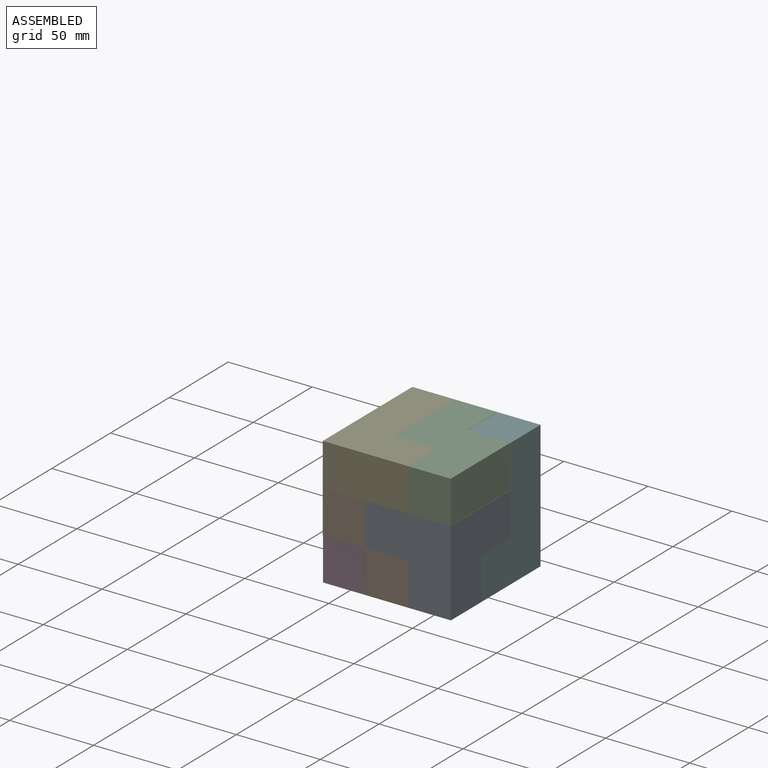
[diagram: assembled view]
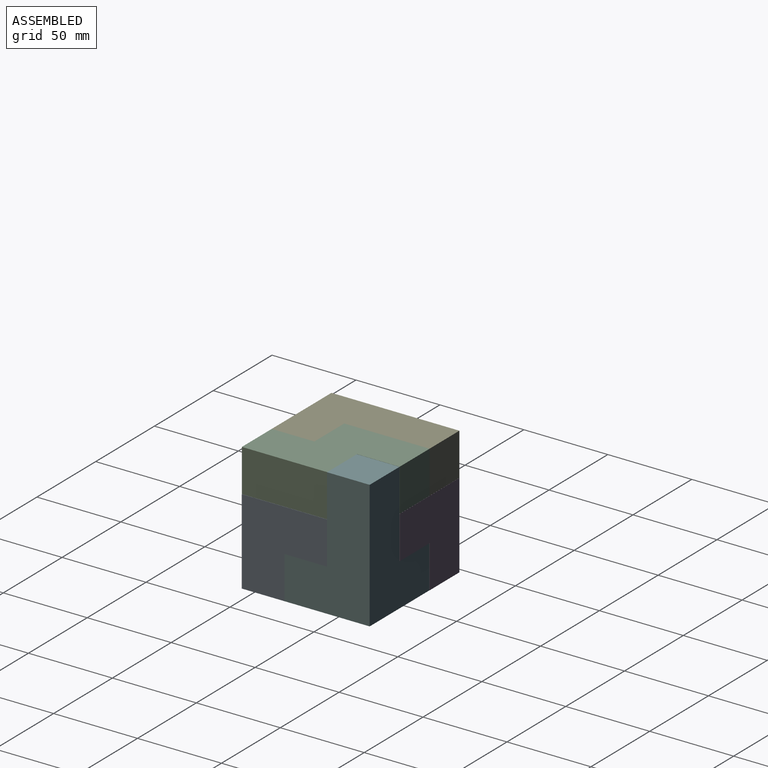
[diagram: assembled view, second angle]
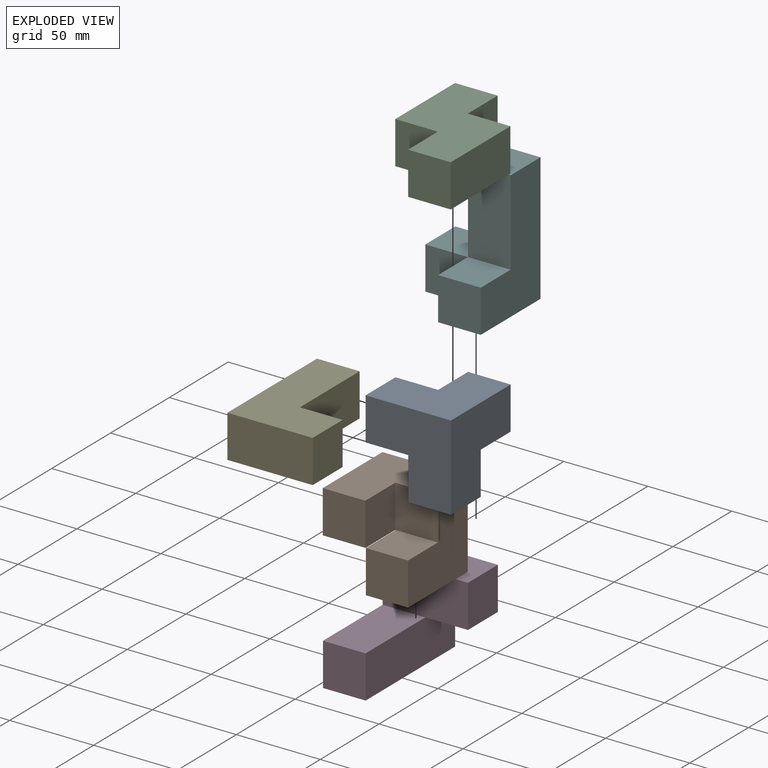
[diagram: exploded view]
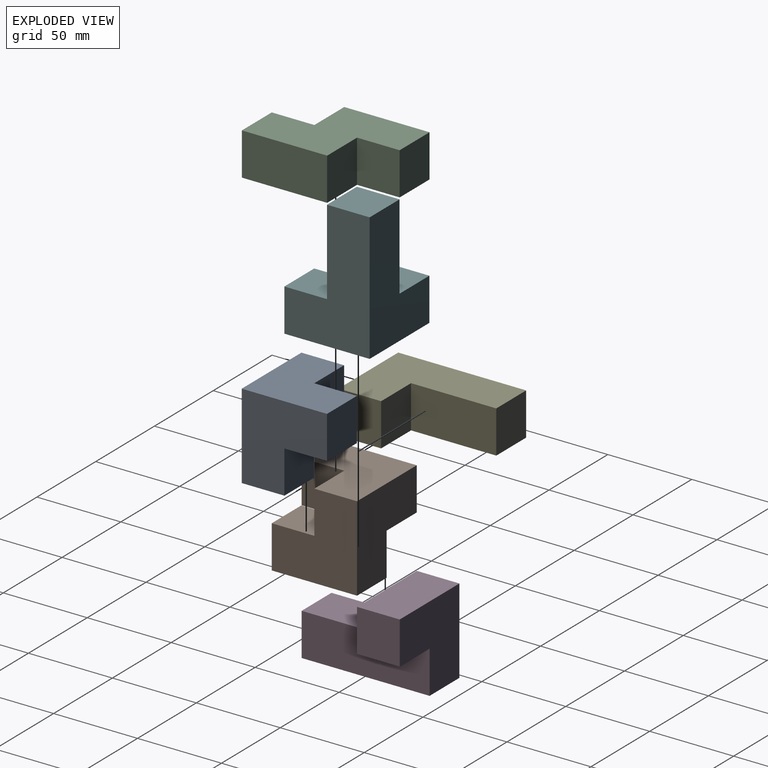
[diagram: exploded view, second angle]
ASSEMBLY  parts=6 mates=5
PART A: 12 faces, bbox 50.8x50.8x50.8 mm
  f0: plane 25.4x25.4mm, normal (-1,0,0), area 645.2mm2, adj f3,f4,f7,f9
  f1: plane 25.4x25.4mm, normal (-1,0,0), area 645.2mm2, adj f2,f6,f8,f10
  f2: plane 25.4x25.4mm, normal (0,1,0), area 645.2mm2, adj f1,f3,f5,f6
  f3: plane 25.4x25.4mm, normal (0,0,-1), area 645.2mm2, adj f0,f2,f4,f5
  f4: plane 25.4x25.4mm, normal (0,1,0), area 645.2mm2, adj f0,f3,f5,f7
  f5: plane 50.8x50.8mm, normal (1,0,0), area 1935.5mm2, adj f2,f3,f4,f6,f7,f8
  f6: plane 25.4x25.4mm, normal (0,0,-1), area 645.2mm2, adj f1,f2,f5,f8
  f7: plane 50.8x50.8mm, normal (0,0,1), area 1935.5mm2, adj f0,f4,f5,f8,f9,f11
  f8: plane 50.8x50.8mm, normal (0,-1,0), area 1935.5mm2, adj f1,f5,f6,f7,f10,f11
  f9: plane 25.4x25.4mm, normal (0,1,0), area 645.2mm2, adj f0,f7,f10,f11
  f10: plane 25.4x25.4mm, normal (0,0,-1), area 645.2mm2, adj f1,f8,f9,f11
  f11: plane 25.4x25.4mm, normal (-1,0,0), area 645.2mm2, adj f7,f8,f9,f10
PART B: 12 faces, bbox 50.8x50.8x50.8 mm
  f0: plane 25.4x25.4mm, normal (0,-1,0), area 645.2mm2, adj f3,f4,f9,f10
  f1: plane 50.8x50.8mm, normal (0,1,0), area 1929mm2, adj f3,f4,f5,f6,f10,f11
  f2: plane 25.4x25.15mm, normal (0,-1,0), area 638.7mm2, adj f5,f6,f8,f11
  f3: plane 50.8x25.4mm, normal (-1,0,0), area 1290.3mm2, adj f0,f1,f4,f10
  f4: plane 50.8x50.8mm, normal (0,0,1), area 1935.5mm2, adj f0,f1,f3,f5,f7,f9
  f5: plane 50.8x50.8mm, normal (1,0,0), area 1935.5mm2, adj f1,f2,f4,f6,f7,f8
  f6: plane 50.8x25.15mm, normal (0,0,-1), area 1277.4mm2, adj f1,f2,f5,f11
  f7: plane 25.4x25.4mm, normal (0,-1,0), area 645.2mm2, adj f4,f5,f8,f9,f10
  f8: plane 25.4x25.15mm, normal (0,0,1), area 638.7mm2, adj f2,f5,f7,f11
  f9: plane 25.4x25.4mm, normal (1,0,0), area 645.2mm2, adj f0,f4,f7,f10
  f10: plane 50.8x25.65mm, normal (0,0,-1), area 1296.8mm2, adj f0,f1,f3,f7,f9,f11
  f11: plane 50.8x25.4mm, normal (-1,0,0), area 1290.3mm2, adj f1,f2,f6,f8,f10
PART C: 10 faces, bbox 50.8x76.2x25.4 mm
  f0: plane 25.4x25.4mm, normal (0,-1,0), area 645.2mm2, adj f1,f7,f8,f9
  f1: plane 50.8x25.4mm, normal (1,0,0), area 1290.3mm2, adj f0,f2,f8,f9
  f2: plane 25.4x25.4mm, normal (0,1,0), area 645.2mm2, adj f1,f3,f8,f9
  f3: plane 25.4x25.4mm, normal (1,0,0), area 645.2mm2, adj f2,f4,f8,f9
  f4: plane 25.4x25.4mm, normal (0,1,0), area 645.2mm2, adj f3,f5,f8,f9
  f5: plane 50.8x25.4mm, normal (-1,0,0), area 1290.3mm2, adj f4,f6,f8,f9
  f6: plane 25.4x25.4mm, normal (0,-1,0), area 645.2mm2, adj f5,f7,f8,f9
  f7: plane 25.4x25.4mm, normal (-1,0,0), area 645.2mm2, adj f0,f6,f8,f9
  f8: plane 76.2x50.8mm, normal (0,0,1), area 2580.6mm2, adj f0,f1,f2,f3,f4,f5,f6,f7
  f9: plane 76.2x50.8mm, normal (0,0,-1), area 2580.6mm2, adj f0,f1,f2,f3,f4,f5,f6,f7
PART D: 10 faces, bbox 50.8x76.2x50.8 mm
  f0: plane 25.4x25.4mm, normal (0,-1,0), area 645.2mm2, adj f1,f5,f6,f7
  f1: plane 50.8x25.4mm, normal (0,0,1), area 1290.3mm2, adj f0,f2,f6,f7
  f2: plane 50.8x25.4mm, normal (0,-1,0), area 1290.3mm2, adj f1,f3,f7,f8,f9
  f3: plane 50.8x25.4mm, normal (0,0,1), area 1290.3mm2, adj f2,f4,f7,f9
  f4: plane 50.8x50.8mm, normal (0,1,0), area 1935.5mm2, adj f3,f5,f6,f7,f8,f9
  f5: plane 76.2x25.4mm, normal (0,0,-1), area 1935.5mm2, adj f0,f4,f6,f7
  f6: plane 76.2x25.4mm, normal (1,0,0), area 1935.5mm2, adj f0,f1,f4,f5,f8
  f7: plane 76.2x50.8mm, normal (-1,0,0), area 2580.6mm2, adj f0,f1,f2,f3,f4,f5
  f8: plane 25.4x25.4mm, normal (0,0,-1), area 645.2mm2, adj f2,f4,f6,f9
  f9: plane 25.4x25.4mm, normal (1,0,0), area 645.2mm2, adj f2,f3,f4,f8
PART E: 8 faces, bbox 50.8x76.2x25.4 mm
  f0: plane 76.2x50.8mm, normal (0,0,-1), area 2580.6mm2, adj f1,f2,f3,f5,f6,f7
  f1: plane 25.4x25.4mm, normal (1,0,0), area 645.2mm2, adj f0,f2,f4,f5
  f2: plane 25.4x25.4mm, normal (0,1,0), area 645.2mm2, adj f0,f1,f3,f4
  f3: plane 50.8x25.4mm, normal (1,0,0), area 1290.3mm2, adj f0,f2,f4,f6
  f4: plane 76.2x50.8mm, normal (0,0,1), area 2580.6mm2, adj f1,f2,f3,f5,f6,f7
  f5: plane 50.8x25.4mm, normal (0,-1,0), area 1290.3mm2, adj f0,f1,f4,f7
  f6: plane 25.4x25.4mm, normal (0,1,0), area 645.2mm2, adj f0,f3,f4,f7
  f7: plane 76.2x25.4mm, normal (-1,0,0), area 1935.5mm2, adj f0,f4,f5,f6
PART F: 12 faces, bbox 50.8x50.8x76.2 mm
  f0: plane 50.8x25.4mm, normal (0,-1,0), area 1290.3mm2, adj f1,f2,f3,f9
  f1: plane 50.8x25.4mm, normal (-1,0,0), area 1290.3mm2, adj f0,f2,f6,f7
  f2: plane 25.4x25.4mm, normal (0,0,1), area 645.2mm2, adj f0,f1,f3,f7
  f3: plane 76.2x50.8mm, normal (1,0,0), area 2580.6mm2, adj f0,f2,f4,f7,f9,f11
  f4: plane 50.8x50.8mm, normal (0,0,-1), area 1935.5mm2, adj f3,f5,f7,f8,f10,f11
  f5: plane 25.4x25.4mm, normal (-1,0,0), area 645.2mm2, adj f4,f6,f7,f8
  f6: plane 25.4x25.4mm, normal (0,0,1), area 645.2mm2, adj f1,f5,f7,f8
  f7: plane 76.2x50.8mm, normal (0,1,0), area 2580.6mm2, adj f1,f2,f3,f4,f5,f6
  f8: plane 25.4x25.4mm, normal (0,-1,0), area 645.2mm2, adj f4,f5,f6,f10
  f9: plane 25.4x25.4mm, normal (0,0,1), area 645.2mm2, adj f0,f3,f10,f11
  f10: plane 25.4x25.4mm, normal (-1,0,0), area 645.2mm2, adj f4,f8,f9,f11
  f11: plane 25.4x25.4mm, normal (0,-1,0), area 645.2mm2, adj f3,f4,f9,f10
PLACE A t=(32.47,-35.22,44.18)mm
PLACE B t=(32.34,-35.22,44.18)mm
PLACE C t=(32.34,-35.22,44.18)mm
PLACE D t=(32.41,-35.15,44.18)mm
PLACE E t=(32.34,-35.22,44.18)mm
PLACE F t=(32.47,-35.22,44.18)mm
MATE fastened F.f9 <-> A.f3  axis (0,0,1) through (19.77,2.88,18.78)mm
MATE fastened E.f1 <-> C.f7  axis (1,0,0) through (6.94,-22.52,56.88)mm
MATE fastened D.f1 <-> B.f10  axis (0,0,1) through (-31.09,-9.75,18.78)mm
MATE fastened C.f9 <-> B.f4  axis (0,0,-1) through (6.94,2.88,44.18)mm
MATE fastened A.f10 <-> B.f8  axis (0,0,-1) through (-5.63,-22.52,18.78)mm
